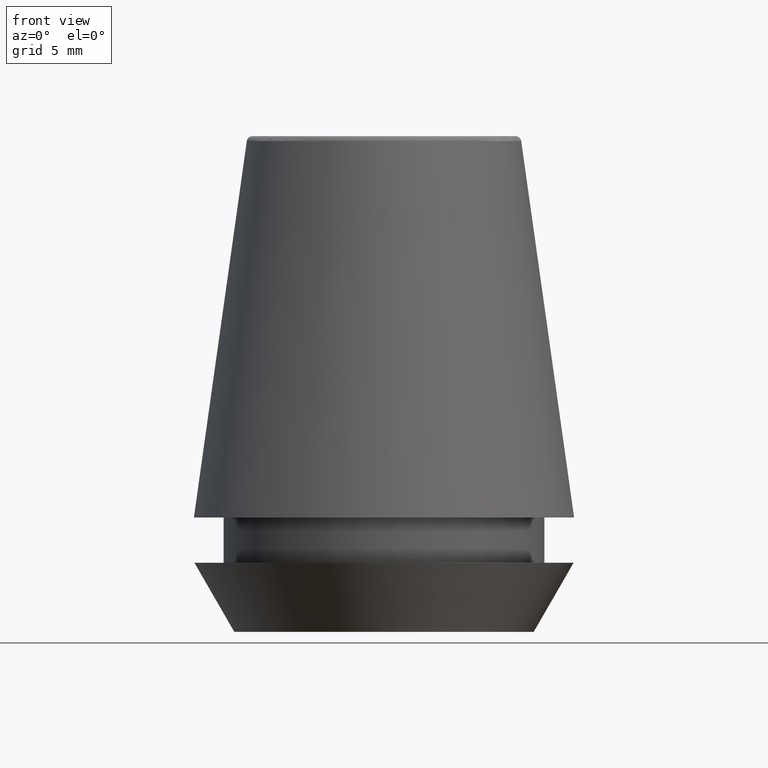
[diagram: clean part render]
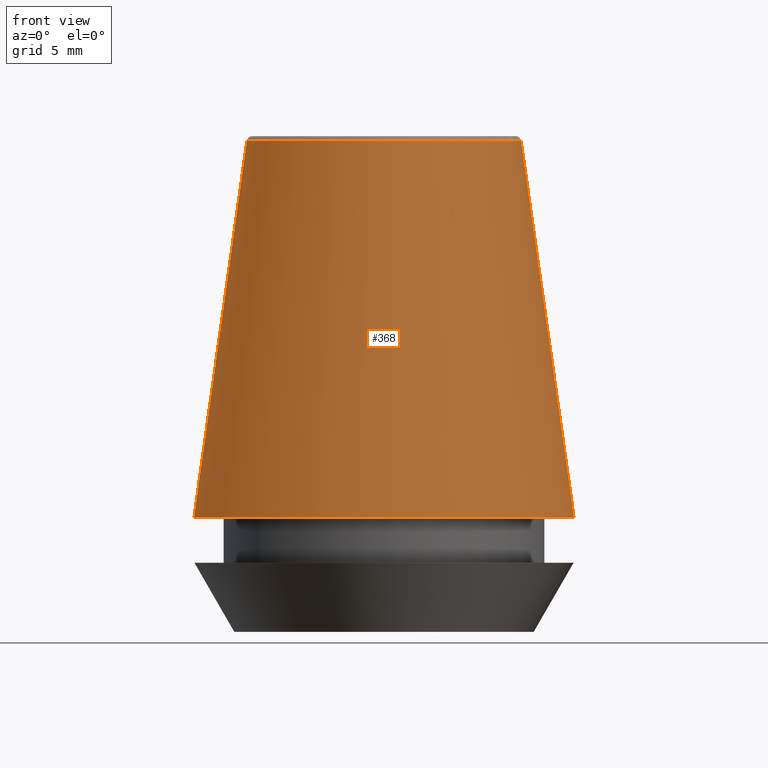
[diagram: same view with one face highlighted and labeled with its STEP entity id]
A machine part, front view. The second image highlights one B-rep face of the part: STEP entity #368.
In plain terms, the highlighted conical surface has half-angle 8 deg.
Its self-contained STEP definition (entity closure, byte-faithful):
#12 = AXIS2_PLACEMENT_3D ( 'NONE', #60, #238, #49 ) ;
#24 = DIRECTION ( 'NONE',  ( -0.0000000000000000000, -0.0000000000000000000, 1.000000000000000000 ) ) ;
#49 = DIRECTION ( 'NONE',  ( 1.000000000000000000, 0.0000000000000000000, 0.0000000000000000000 ) ) ;
#50 = CIRCLE ( 'NONE', #201, 13.03657776635556700 ) ;
#53 = VERTEX_POINT ( 'NONE', #291 ) ;
#60 = CARTESIAN_POINT ( 'NONE',  ( 0.0000000000000000000, 0.0000000000000000000, 33.65566924038402900 ) ) ;
#69 = VECTOR ( 'NONE', #341, 1000.000000000000000 ) ;
#71 = CARTESIAN_POINT ( 'NONE',  ( -13.03657776635556700, 0.0000000000000000000, 7.842050807568876200 ) ) ;
#79 = VERTEX_POINT ( 'NONE', #140 ) ;
#82 = CARTESIAN_POINT ( 'NONE',  ( 13.03657776635556700, 1.596520323340289600E-015, 7.842050807568876200 ) ) ;
#85 = EDGE_CURVE ( 'NONE', #256, #137, #344, .T. ) ;
#87 = CARTESIAN_POINT ( 'NONE',  ( 13.03657776635556700, 1.596520323340289600E-015, 7.842050807568876200 ) ) ;
#101 = EDGE_CURVE ( 'NONE', #53, #137, #50, .T. ) ;
#129 = CARTESIAN_POINT ( 'NONE',  ( 0.0000000000000000000, 0.0000000000000000000, 7.842050807568876200 ) ) ;
#131 = DIRECTION ( 'NONE',  ( 1.000000000000000000, 0.0000000000000000000, 0.0000000000000000000 ) ) ;
#135 = EDGE_CURVE ( 'NONE', #79, #256, #239, .T. ) ;
#137 = VERTEX_POINT ( 'NONE', #87 ) ;
#140 = CARTESIAN_POINT ( 'NONE',  ( -9.408710285118862900, 0.0000000000000000000, 33.65566924038402900 ) ) ;
#170 = EDGE_LOOP ( 'NONE', ( #214, #226, #263, #308 ) ) ;
#181 = CONICAL_SURFACE ( 'NONE', #284, 13.03657776635556700, 0.1396263401595396500 ) ;
#187 = VECTOR ( 'NONE', #323, 1000.000000000000000 ) ;
#201 = AXIS2_PLACEMENT_3D ( 'NONE', #206, #24, #131 ) ;
#206 = CARTESIAN_POINT ( 'NONE',  ( 0.0000000000000000000, 0.0000000000000000000, 7.842050807568876200 ) ) ;
#214 = ORIENTED_EDGE ( 'NONE', *, *, #85, .F. ) ;
#226 = ORIENTED_EDGE ( 'NONE', *, *, #135, .F. ) ;
#238 = DIRECTION ( 'NONE',  ( -0.0000000000000000000, -0.0000000000000000000, 1.000000000000000000 ) ) ;
#239 = CIRCLE ( 'NONE', #12, 9.408710285118862900 ) ;
#256 = VERTEX_POINT ( 'NONE', #379 ) ;
#261 = DIRECTION ( 'NONE',  ( -1.000000000000000000, 0.0000000000000000000, 0.0000000000000000000 ) ) ;
#263 = ORIENTED_EDGE ( 'NONE', *, *, #294, .T. ) ;
#271 = FACE_OUTER_BOUND ( 'NONE', #170, .T. ) ;
#284 = AXIS2_PLACEMENT_3D ( 'NONE', #129, #332, #261 ) ;
#291 = CARTESIAN_POINT ( 'NONE',  ( -13.03657776635556700, 0.0000000000000000000, 7.842050807568876200 ) ) ;
#294 = EDGE_CURVE ( 'NONE', #79, #53, #311, .T. ) ;
#308 = ORIENTED_EDGE ( 'NONE', *, *, #101, .T. ) ;
#311 = LINE ( 'NONE', #71, #69 ) ;
#323 = DIRECTION ( 'NONE',  ( 0.1391731009600587800, 1.704378926181474000E-017, -0.9902680687415712500 ) ) ;
#332 = DIRECTION ( 'NONE',  ( 0.0000000000000000000, 0.0000000000000000000, -1.000000000000000000 ) ) ;
#341 = DIRECTION ( 'NONE',  ( -0.1391731009600587800, 0.0000000000000000000, -0.9902680687415712500 ) ) ;
#344 = LINE ( 'NONE', #82, #187 ) ;
#368 = ADVANCED_FACE ( 'NONE', ( #271 ), #181, .T. ) ;
#379 = CARTESIAN_POINT ( 'NONE',  ( 9.408710285118862900, 1.374377508408924700E-015, 33.65566924038402900 ) ) ;